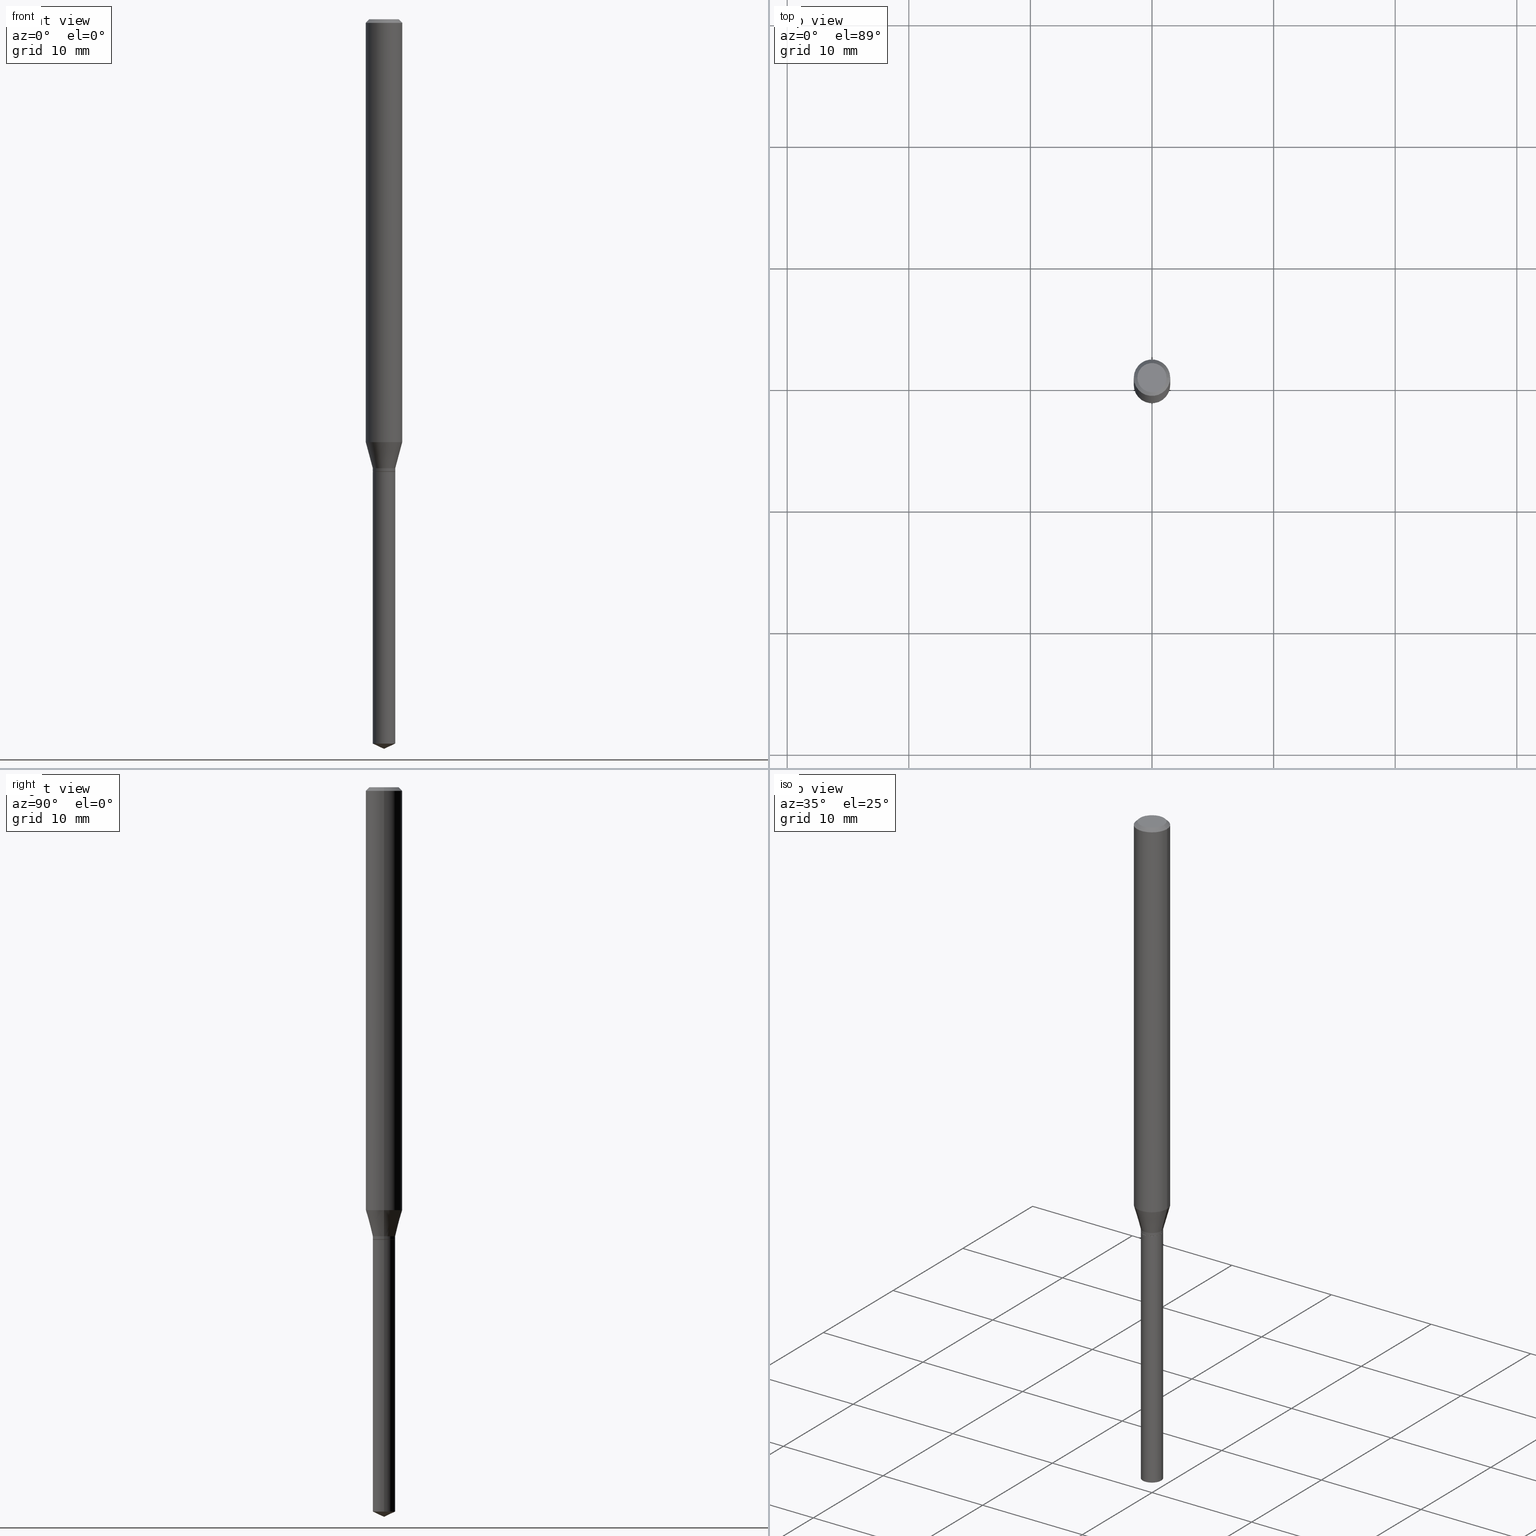
[diagram: canonical four-view strip — front | top / right | iso, engineering-drawing reading convention]
A machine part, canonical four-view strip (front | top / right | iso — engineering-drawing reading convention). The complete STEP part file that produces these views, byte-faithful:
ISO-10303-21;
HEADER;
FILE_DESCRIPTION (( 'STEP AP203' ),
    '1' );
FILE_NAME ('07583.STEP',
    '2024-04-23T23:18:37',
    ( '' ),
    ( '' ),
    'SwSTEP 2.0',
    'SolidWorks 2023',
    '' );
FILE_SCHEMA (( 'CONFIG_CONTROL_DESIGN' ));
ENDSEC;

DATA;
#1 = VECTOR ( 'NONE', #47, 39.37007874015747433 ) ;
#2 = DIRECTION ( 'NONE',  ( -2.445468806185136597E-29, 3.491481338843145583E-15, 1.000000000000000000 ) ) ;
#3 = AXIS2_PLACEMENT_3D ( 'NONE', #489, #115, #110 ) ;
#4 = DIRECTION ( 'NONE',  ( -2.445468806185136597E-29, 3.491481338843145583E-15, 1.000000000000000000 ) ) ;
#5 = LINE ( 'NONE', #377, #486 ) ;
#6 = EDGE_LOOP ( 'NONE', ( #98, #381, #43 ) ) ;
#7 = APPLICATION_PROTOCOL_DEFINITION ( 'international standard', 'config_control_design', 1994, #412 ) ;
#8 = DIRECTION ( 'NONE',  ( -1.000000000000000000, 6.982962677686265922E-15, -4.876176775795935793E-29 ) ) ;
#9 = ORIENTED_EDGE ( 'NONE', *, *, #373, .F. ) ;
#10 = APPROVAL ( #393, 'UNSPECIFIED' ) ;
#11 = PERSON_AND_ORGANIZATION ( #208, #271 ) ;
#12 = DIRECTION ( 'NONE',  ( 1.000000000000000000, -6.982962677686259611E-15, 0.000000000000000000 ) ) ;
#13 = CONICAL_SURFACE ( 'NONE', #238, 0.03640000000000004343, 0.2617993877991500740 ) ;
#14 = ORIENTED_EDGE ( 'NONE', *, *, #72, .T. ) ;
#15 = DIRECTION ( 'NONE',  ( -2.445468806185136597E-29, 3.491481338843145583E-15, 1.000000000000000000 ) ) ;
#16 = CALENDAR_DATE ( 2024, 23, 4 ) ;
#17 = PERSON_AND_ORGANIZATION_ROLE ( 'creator' ) ;
#18 = ORIENTED_EDGE ( 'NONE', *, *, #249, .T. ) ;
#19 = DIRECTION ( 'NONE',  ( 1.000000000000000000, -6.982962677686265922E-15, 0.000000000000000000 ) ) ;
#20 = VECTOR ( 'NONE', #137, 39.37007874015748143 ) ;
#21 = ADVANCED_FACE ( 'NONE', ( #465 ), #38, .F. ) ;
#22 = DIRECTION ( 'NONE',  ( -2.445468806185136597E-29, 3.491481338843145583E-15, 1.000000000000000000 ) ) ;
#23 = DIRECTION ( 'NONE',  ( 1.000000000000000000, -6.982962677686273810E-15, 0.000000000000000000 ) ) ;
#24 = EDGE_LOOP ( 'NONE', ( #460, #290, #407, #176 ) ) ;
#25 = LOCAL_TIME ( 19, 18, 37.00000000000000000, #468 ) ;
#26 = EDGE_CURVE ( 'NONE', #350, #282, #274, .T. ) ;
#27 = DIRECTION ( 'NONE',  ( 1.000000000000000000, -6.982962677686273810E-15, 0.000000000000000000 ) ) ;
#28 = LINE ( 'NONE', #482, #239 ) ;
#29 = DIRECTION ( 'NONE',  ( -2.445468806185136877E-29, 3.491481338843145188E-15, 1.000000000000000000 ) ) ;
#30 = ORIENTED_EDGE ( 'NONE', *, *, #240, .T. ) ;
#31 = VECTOR ( 'NONE', #29, 39.37007874015748143 ) ;
#32 = AXIS2_PLACEMENT_3D ( 'NONE', #266, #234, #342 ) ;
#33 = LINE ( 'NONE', #409, #392 ) ;
#34 = EDGE_LOOP ( 'NONE', ( #441, #30, #227, #46 ) ) ;
#35 = APPROVAL_STATUS ( 'not_yet_approved' ) ;
#36 = PLANE ( 'NONE',  #286 ) ;
#37 = DIRECTION ( 'NONE',  ( -2.445468806185136877E-29, 3.491481338843145188E-15, 1.000000000000000000 ) ) ;
#38 = PLANE ( 'NONE',  #189 ) ;
#39 = CALENDAR_DATE ( 2024, 23, 4 ) ;
#40 = CIRCLE ( 'NONE', #323, 0.03640000000000004343 ) ;
#41 = CARTESIAN_POINT ( 'NONE',  ( -0.03640000000000004343, -4.816928866459602676E-15, -1.453699999999999770 ) ) ;
#42 = AXIS2_PLACEMENT_3D ( 'NONE', #179, #198, #203 ) ;
#43 = ORIENTED_EDGE ( 'NONE', *, *, #249, .F. ) ;
#44 = CC_DESIGN_DATE_AND_TIME_ASSIGNMENT ( #94, #398, ( #277 ) ) ;
#45 = CARTESIAN_POINT ( 'NONE',  ( 0.03639999999999998792, -8.442494056770533327E-15, -2.345226401243158065 ) ) ;
#46 = ORIENTED_EDGE ( 'NONE', *, *, #387, .F. ) ;
#47 = DIRECTION ( 'NONE',  ( -0.2588190451025213501, 5.211531920934551042E-15, 0.9659258262890682012 ) ) ;
#48 = VERTEX_POINT ( 'NONE', #390 ) ;
#49 = FACE_OUTER_BOUND ( 'NONE', #162, .T. ) ;
#50 = CC_DESIGN_APPROVAL ( #10, ( #54 ) ) ;
#51 = CC_DESIGN_PERSON_AND_ORGANIZATION_ASSIGNMENT ( #11, #316, ( #92 ) ) ;
#52 = CARTESIAN_POINT ( 'NONE',  ( 2.888098660104665518E-31, -4.123439461173782112E-17, -0.01181000000000007738 ) ) ;
#53 = ORIENTED_EDGE ( 'NONE', *, *, #341, .F. ) ;
#54 = SECURITY_CLASSIFICATION ( '', '', #146 ) ;
#55 = CIRCLE ( 'NONE', #42, 0.03590000000000000135 ) ;
#56 = ADVANCED_FACE ( 'NONE', ( #49 ), #200, .T. ) ;
#57 = ORIENTED_EDGE ( 'NONE', *, *, #401, .T. ) ;
#58 = PERSON_AND_ORGANIZATION ( #208, #271 ) ;
#59 = DIRECTION ( 'NONE',  ( -2.445468806185136597E-29, 3.491481338843145583E-15, 1.000000000000000000 ) ) ;
#60 = VERTEX_POINT ( 'NONE', #114 ) ;
#61 = AXIS2_PLACEMENT_3D ( 'NONE', #195, #153, #416 ) ;
#62 = EDGE_CURVE ( 'NONE', #333, #353, #260, .T. ) ;
#63 = DIRECTION ( 'NONE',  ( -2.445468806185136597E-29, 3.491481338843145583E-15, 1.000000000000000000 ) ) ;
#64 = MANIFOLD_SOLID_BREP ( 'Body-Move/Copy2[1]', #95 ) ;
#65 = CARTESIAN_POINT ( 'NONE',  ( 0.000000000000000000, 0.000000000000000000, 0.000000000000000000 ) ) ;
#66 = APPLICATION_PROTOCOL_DEFINITION ( 'international standard', 'config_control_design', 1994, #228 ) ;
#67 = MANIFOLD_SOLID_BREP ( 'Body-Move/Copy2[2]', #215 ) ;
#68 = DIRECTION ( 'NONE',  ( 1.000000000000000000, 0.000000000000000000, 0.000000000000000000 ) ) ;
#69 = EDGE_LOOP ( 'NONE', ( #78, #204 ) ) ;
#70 = CONICAL_SURFACE ( 'NONE', #111, 0.05905000000000000526, 0.7853981633974452814 ) ;
#71 = CARTESIAN_POINT ( 'NONE',  ( 0.000000000000000000, 0.000000000000000000, 0.000000000000000000 ) ) ;
#72 = EDGE_CURVE ( 'NONE', #365, #132, #127, .T. ) ;
#73 = DIRECTION ( 'NONE',  ( -1.000000000000000000, 6.982962677686265922E-15, -4.876176775795935793E-29 ) ) ;
#74 = CARTESIAN_POINT ( 'NONE',  ( 3.554978003551332666E-29, -5.075566422276279847E-15, -1.453699999999999770 ) ) ;
#75 =( NAMED_UNIT ( * ) SI_UNIT ( $, .STERADIAN. ) SOLID_ANGLE_UNIT ( ) );
#76 = EDGE_CURVE ( 'NONE', #83, #282, #253, .T. ) ;
#77 = CARTESIAN_POINT ( 'NONE',  ( 4.132873053354867254E-48, -5.900647395337818946E-34, -1.690012582823346072E-19 ) ) ;
#78 = ORIENTED_EDGE ( 'NONE', *, *, #466, .F. ) ;
#79 =( CONVERSION_BASED_UNIT ( 'INCH', #258 ) LENGTH_UNIT ( ) NAMED_UNIT ( #87 ) );
#80 = ADVANCED_FACE ( 'NONE', ( #96 ), #13, .T. ) ;
#81 = VECTOR ( 'NONE', #406, 39.37007874015748143 ) ;
#82 = VECTOR ( 'NONE', #376, 39.37007874015748854 ) ;
#83 = VERTEX_POINT ( 'NONE', #130 ) ;
#84 = APPROVAL_DATE_TIME ( #236, #312 ) ;
#85 = CARTESIAN_POINT ( 'NONE',  ( 0.03590000000000000135, -5.364311928998607581E-15, -1.464599999999999902 ) ) ;
#86 = EDGE_LOOP ( 'NONE', ( #212, #375, #148, #117 ) ) ;
#87 = DIMENSIONAL_EXPONENTS ( 1.000000000000000000, 0.000000000000000000, 0.000000000000000000, 0.000000000000000000, 0.000000000000000000, 0.000000000000000000, 0.000000000000000000 ) ;
#88 = ADVANCED_FACE ( 'NONE', ( #169 ), #459, .T. ) ;
#89 = CARTESIAN_POINT ( 'NONE',  ( 3.581633613538751591E-29, -5.113623568869670202E-15, -1.464599999999999902 ) ) ;
#90 = CONICAL_SURFACE ( 'NONE', #297, 0.05905000000000000526, 0.7853981633974452814 ) ;
#91 = DIRECTION ( 'NONE',  ( 1.000000000000000000, -6.982962677686267499E-15, 4.876176775795936914E-29 ) ) ;
#92 = PRODUCT_DEFINITION_FORMATION_WITH_SPECIFIED_SOURCE ( 'ANY', '', #343, .NOT_KNOWN. ) ;
#93 = ORIENTED_EDGE ( 'NONE', *, *, #411, .F. ) ;
#94 = DATE_AND_TIME ( #39, #25 ) ;
#95 = CLOSED_SHELL ( 'NONE', ( #325, #88, #108, #463, #428 ) ) ;
#96 = FACE_OUTER_BOUND ( 'NONE', #273, .T. ) ;
#97 = CIRCLE ( 'NONE', #154, 0.04724000000000000421 ) ;
#98 = ORIENTED_EDGE ( 'NONE', *, *, #395, .F. ) ;
#99 = APPROVAL_DATE_TIME ( #223, #168 ) ;
#100 = DIRECTION ( 'NONE',  ( -2.445468806185136597E-29, 3.491481338843145583E-15, 1.000000000000000000 ) ) ;
#101 = CC_DESIGN_PERSON_AND_ORGANIZATION_ASSIGNMENT ( #447, #462, ( #54 ) ) ;
#102 = VERTEX_POINT ( 'NONE', #175 ) ;
#103 = CARTESIAN_POINT ( 'NONE',  ( 2.888098660104665518E-31, -4.123439461173782112E-17, -0.01181000000000007738 ) ) ;
#104 = DIRECTION ( 'NONE',  ( 1.000000000000000000, -6.982962677686273810E-15, 0.000000000000000000 ) ) ;
#105 = AXIS2_PLACEMENT_3D ( 'NONE', #247, #476, #281 ) ;
#106 = MECHANICAL_CONTEXT ( 'NONE', #412, 'mechanical' ) ;
#107 = DIRECTION ( 'NONE',  ( 1.000000000000000000, -6.982962677686266711E-15, 4.876185090822587894E-29 ) ) ;
#108 = ADVANCED_FACE ( 'NONE', ( #133 ), #478, .T. ) ;
#109 = FACE_OUTER_BOUND ( 'NONE', #283, .T. ) ;
#110 = DIRECTION ( 'NONE',  ( 1.000000000000000000, -6.982962677686267499E-15, 4.876176775795936353E-29 ) ) ;
#111 = AXIS2_PLACEMENT_3D ( 'NONE', #337, #296, #488 ) ;
#112 = AXIS2_PLACEMENT_3D ( 'NONE', #71, #288, #68 ) ;
#113 = DIRECTION ( 'NONE',  ( 1.000000000000000000, -6.982962677686265922E-15, 0.000000000000000000 ) ) ;
#114 = CARTESIAN_POINT ( 'NONE',  ( 5.776686413970529753E-29, -8.247577218615279626E-15, -2.362200000000000077 ) ) ;
#115 = DIRECTION ( 'NONE',  ( -2.445468806185136597E-29, 3.491481338843145583E-15, 1.000000000000000000 ) ) ;
#116 = CARTESIAN_POINT ( 'NONE',  ( 5.776686413970529753E-29, -8.247577218615279626E-15, -2.362200000000000077 ) ) ;
#117 = ORIENTED_EDGE ( 'NONE', *, *, #424, .F. ) ;
#118 = ADVANCED_FACE ( 'NONE', ( #172 ), #90, .T. ) ;
#119 = CARTESIAN_POINT ( 'NONE',  ( 3.581633613538751591E-29, -5.113623568869670202E-15, -1.464599999999999902 ) ) ;
#120 = ORIENTED_EDGE ( 'NONE', *, *, #457, .T. ) ;
#121 = AXIS2_PLACEMENT_3D ( 'NONE', #359, #432, #19 ) ;
#122 = DIRECTION ( 'NONE',  ( -2.445468806185136597E-29, 3.491481338843145583E-15, 1.000000000000000000 ) ) ;
#123 = COORDINATED_UNIVERSAL_TIME_OFFSET ( 5, 0, .BEHIND. ) ;
#124 = ORIENTED_EDGE ( 'NONE', *, *, #395, .T. ) ;
#125 = PERSON_AND_ORGANIZATION ( #208, #271 ) ;
#126 = DIRECTION ( 'NONE',  ( -2.445468806185136597E-29, 3.491481338843145583E-15, 1.000000000000000000 ) ) ;
#127 = CIRCLE ( 'NONE', #470, 0.03640000000000004343 ) ;
#128 = AXIS2_PLACEMENT_3D ( 'NONE', #356, #394, #23 ) ;
#129 = ORIENTED_EDGE ( 'NONE', *, *, #131, .T. ) ;
#130 = CARTESIAN_POINT ( 'NONE',  ( 0.03640000000000005037, -5.366057669668031451E-15, -1.464100000000000401 ) ) ;
#131 = EDGE_CURVE ( 'NONE', #132, #438, #431, .T. ) ;
#132 = VERTEX_POINT ( 'NONE', #202 ) ;
#133 = FACE_OUTER_BOUND ( 'NONE', #6, .T. ) ;
#134 = AXIS2_PLACEMENT_3D ( 'NONE', #453, #380, #347 ) ;
#135 = VERTEX_POINT ( 'NONE', #211 ) ;
#136 = CC_DESIGN_PERSON_AND_ORGANIZATION_ASSIGNMENT ( #58, #17, ( #277 ) ) ;
#137 = DIRECTION ( 'NONE',  ( 0.7071067811865453523, -7.319954787623248157E-15, -0.7071067811865496822 ) ) ;
#138 = ORIENTED_EDGE ( 'NONE', *, *, #194, .T. ) ;
#139 = DIRECTION ( 'NONE',  ( -0.7071067811865453523, 2.468850131082234184E-15, -0.7071067811865496822 ) ) ;
#140 = CALENDAR_DATE ( 2024, 23, 4 ) ;
#141 = CARTESIAN_POINT ( 'NONE',  ( 5.735178007681969204E-29, -8.188314215302752941E-15, -2.345226401243158065 ) ) ;
#142 = ADVANCED_BREP_SHAPE_REPRESENTATION ( '07583', ( #64, #67, #112 ), #246 ) ;
#143 = ADVANCED_FACE ( 'NONE', ( #364 ), #427, .T. ) ;
#144 = CONICAL_SURFACE ( 'NONE', #171, 0.03640000000000004343, 0.2617993877991500740 ) ;
#145 = AXIS2_PLACEMENT_3D ( 'NONE', #103, #63, #180 ) ;
#146 = SECURITY_CLASSIFICATION_LEVEL ( 'unclassified' ) ;
#147 = CARTESIAN_POINT ( 'NONE',  ( -0.03640000000000000180, -6.392331336269535190E-15, -1.464599999999999902 ) ) ;
#148 = ORIENTED_EDGE ( 'NONE', *, *, #76, .F. ) ;
#149 = EDGE_CURVE ( 'NONE', #357, #158, #397, .T. ) ;
#150 = PERSON_AND_ORGANIZATION_ROLE ( 'design_owner' ) ;
#151 = CARTESIAN_POINT ( 'NONE',  ( -0.03640000000000000180, -4.854986013052993820E-15, -1.464599999999999902 ) ) ;
#152 = DIRECTION ( 'NONE',  ( 0.9063077870366481603, -4.853149677051353546E-15, 0.4226182617407032716 ) ) ;
#153 = DIRECTION ( 'NONE',  ( -2.445468806185136597E-29, 3.491481338843145583E-15, 1.000000000000000000 ) ) ;
#154 = AXIS2_PLACEMENT_3D ( 'NONE', #448, #331, #107 ) ;
#155 = APPROVAL_PERSON_ORGANIZATION ( #125, #10, #275 ) ;
#156 = ADVANCED_FACE ( 'NONE', ( #445 ), #70, .T. ) ;
#157 = CARTESIAN_POINT ( 'NONE',  ( 0.03640000000000000180, -5.367803410337450588E-15, -1.464599999999999902 ) ) ;
#158 = VERTEX_POINT ( 'NONE', #147 ) ;
#159 = FACE_OUTER_BOUND ( 'NONE', #214, .T. ) ;
#160 = ORIENTED_EDGE ( 'NONE', *, *, #411, .T. ) ;
#161 = FACE_OUTER_BOUND ( 'NONE', #86, .T. ) ;
#162 = EDGE_LOOP ( 'NONE', ( #263, #434, #57, #93 ) ) ;
#163 = CYLINDRICAL_SURFACE ( 'NONE', #298, 0.03640000000000000180 ) ;
#164 = CIRCLE ( 'NONE', #346, 0.03590000000000000135 ) ;
#165 = CARTESIAN_POINT ( 'NONE',  ( 3.581633613538751591E-29, -5.113623568869670202E-15, -1.464599999999999902 ) ) ;
#166 = ORIENTED_EDGE ( 'NONE', *, *, #149, .T. ) ;
#167 = PERSON_AND_ORGANIZATION ( #208, #271 ) ;
#168 = APPROVAL ( #35, 'UNSPECIFIED' ) ;
#169 = FACE_OUTER_BOUND ( 'NONE', #321, .T. ) ;
#170 = EDGE_CURVE ( 'NONE', #282, #365, #222, .T. ) ;
#171 = AXIS2_PLACEMENT_3D ( 'NONE', #413, #313, #113 ) ;
#172 = FACE_OUTER_BOUND ( 'NONE', #24, .T. ) ;
#173 = CC_DESIGN_APPROVAL ( #312, ( #92 ) ) ;
#174 = FACE_OUTER_BOUND ( 'NONE', #34, .T. ) ;
#175 = CARTESIAN_POINT ( 'NONE',  ( 0.04724000000000000421, -3.852183633974369838E-16, -3.380025165621689721E-19 ) ) ;
#176 = ORIENTED_EDGE ( 'NONE', *, *, #479, .F. ) ;
#177 = EDGE_LOOP ( 'NONE', ( #250, #18, #138, #327 ) ) ;
#178 = DIRECTION ( 'NONE',  ( -2.445468806185136597E-29, 3.491481338843145583E-15, 1.000000000000000000 ) ) ;
#179 = CARTESIAN_POINT ( 'NONE',  ( 3.581633613538751591E-29, -5.113623568869670202E-15, -1.464599999999999902 ) ) ;
#180 = DIRECTION ( 'NONE',  ( 1.000000000000000000, -6.982962677686267499E-15, 0.000000000000000000 ) ) ;
#181 = FACE_OUTER_BOUND ( 'NONE', #481, .T. ) ;
#182 = DIRECTION ( 'NONE',  ( 1.000000000000000000, -6.982962677686259611E-15, 0.000000000000000000 ) ) ;
#183 = DIRECTION ( 'NONE',  ( 1.000000000000000000, -6.982962677686266711E-15, 4.876185090822587894E-29 ) ) ;
#184 = ORIENTED_EDGE ( 'NONE', *, *, #264, .T. ) ;
#185 = DIRECTION ( 'NONE',  ( 1.000000000000000000, -6.982962677686268288E-15, 0.000000000000000000 ) ) ;
#186 = EDGE_CURVE ( 'NONE', #475, #102, #97, .T. ) ;
#187 = CARTESIAN_POINT ( 'NONE',  ( -0.05905000000000017180, -4.360852699566974684E-15, -1.369169049208564415 ) ) ;
#188 = ORIENTED_EDGE ( 'NONE', *, *, #76, .T. ) ;
#189 = AXIS2_PLACEMENT_3D ( 'NONE', #89, #418, #385 ) ;
#190 = AXIS2_PLACEMENT_3D ( 'NONE', #77, #352, #73 ) ;
#191 = LINE ( 'NONE', #116, #209 ) ;
#192 = ORIENTED_EDGE ( 'NONE', *, *, #284, .T. ) ;
#193 = CARTESIAN_POINT ( 'NONE',  ( 3.348260200233706475E-29, -4.780428185033314966E-15, -1.369169049208564415 ) ) ;
#194 = EDGE_CURVE ( 'NONE', #345, #357, #33, .T. ) ;
#195 = CARTESIAN_POINT ( 'NONE',  ( 0.000000000000000000, 0.000000000000000000, 0.000000000000000000 ) ) ;
#196 = CARTESIAN_POINT ( 'NONE',  ( -0.03640000000000004343, -4.835084569421588680E-15, -1.453699999999999770 ) ) ;
#197 = ORIENTED_EDGE ( 'NONE', *, *, #62, .T. ) ;
#198 = DIRECTION ( 'NONE',  ( -2.445468806185136597E-29, 3.491481338843145583E-15, 1.000000000000000000 ) ) ;
#199 = AXIS2_PLACEMENT_3D ( 'NONE', #193, #317, #185 ) ;
#200 = CYLINDRICAL_SURFACE ( 'NONE', #61, 0.05905000000000008159 ) ;
#201 = ADVANCED_FACE ( 'NONE', ( #109 ), #480, .T. ) ;
#202 = CARTESIAN_POINT ( 'NONE',  ( 0.03640000000000004343, -5.329746263744060232E-15, -1.453699999999999770 ) ) ;
#203 = DIRECTION ( 'NONE',  ( 1.000000000000000000, -6.982962677686259611E-15, 0.000000000000000000 ) ) ;
#204 = ORIENTED_EDGE ( 'NONE', *, *, #240, .F. ) ;
#205 = COORDINATED_UNIVERSAL_TIME_OFFSET ( 5, 0, .BEHIND. ) ;
#206 = EDGE_CURVE ( 'NONE', #102, #135, #216, .T. ) ;
#207 = CARTESIAN_POINT ( 'NONE',  ( 3.554978003551332666E-29, -5.075566422276279847E-15, -1.453699999999999770 ) ) ;
#208 = PERSON ( 'UNSPECIFIED', 'UNSPECIFIED', 'UNSPECIFIED', ('UNSPECIFIED'), ('UNSPECIFIED'), ('UNSPECIFIED') ) ;
#209 = VECTOR ( 'NONE', #384, 39.37007874015748143 ) ;
#210 = AXIS2_PLACEMENT_3D ( 'NONE', #455, #422, #464 ) ;
#211 = CARTESIAN_POINT ( 'NONE',  ( 0.05905000000000000526, -4.535783407291119586E-16, -0.01181000000000007738 ) ) ;
#212 = ORIENTED_EDGE ( 'NONE', *, *, #466, .T. ) ;
#213 = DIRECTION ( 'NONE',  ( 0.2588190451025213501, 1.565188264969621968E-15, 0.9659258262890682012 ) ) ;
#214 = EDGE_LOOP ( 'NONE', ( #53, #14, #129, #293 ) ) ;
#215 = CLOSED_SHELL ( 'NONE', ( #363, #118, #490, #80, #201, #143, #328, #56, #156, #319, #21, #469 ) ) ;
#216 = LINE ( 'NONE', #374, #20 ) ;
#217 = AXIS2_PLACEMENT_3D ( 'NONE', #165, #122, #12 ) ;
#218 = AXIS2_PLACEMENT_3D ( 'NONE', #300, #22, #182 ) ;
#219 = CARTESIAN_POINT ( 'NONE',  ( 8.265746106709734507E-48, -1.180129479067563789E-33, -3.380025165646692144E-19 ) ) ;
#220 = CYLINDRICAL_SURFACE ( 'NONE', #3, 0.05905000000000008159 ) ;
#221 = CALENDAR_DATE ( 2024, 23, 4 ) ;
#222 = LINE ( 'NONE', #299, #443 ) ;
#223 = DATE_AND_TIME ( #140, #270 ) ;
#224 = LINE ( 'NONE', #41, #1 ) ;
#225 = EDGE_CURVE ( 'NONE', #102, #475, #279, .T. ) ;
#226 = LINE ( 'NONE', #425, #382 ) ;
#227 = ORIENTED_EDGE ( 'NONE', *, *, #424, .T. ) ;
#228 = APPLICATION_CONTEXT ( 'configuration controlled 3d designs of mechanical parts and assemblies' ) ;
#229 = ORIENTED_EDGE ( 'NONE', *, *, #170, .F. ) ;
#230 = LOCAL_TIME ( 19, 18, 37.00000000000000000, #205 ) ;
#231 = DIRECTION ( 'NONE',  ( 1.000000000000000000, -6.982962677686265922E-15, 0.000000000000000000 ) ) ;
#232 = CARTESIAN_POINT ( 'NONE',  ( -0.03590000000000000135, -4.858538726731794719E-15, -1.464599999999999902 ) ) ;
#233 = EDGE_CURVE ( 'NONE', #48, #158, #339, .T. ) ;
#234 = DIRECTION ( 'NONE',  ( -2.445468806185136597E-29, 3.491481338843145583E-15, 1.000000000000000000 ) ) ;
#235 = EDGE_LOOP ( 'NONE', ( #120, #197, #248, #429 ) ) ;
#236 = DATE_AND_TIME ( #421, #280 ) ;
#237 = EDGE_LOOP ( 'NONE', ( #166, #184 ) ) ;
#238 = AXIS2_PLACEMENT_3D ( 'NONE', #207, #15, #437 ) ;
#239 = VECTOR ( 'NONE', #139, 39.37007874015748143 ) ;
#240 = EDGE_CURVE ( 'NONE', #350, #355, #164, .T. ) ;
#241 = ORIENTED_EDGE ( 'NONE', *, *, #131, .F. ) ;
#242 = CARTESIAN_POINT ( 'NONE',  ( 3.581633613538751591E-29, -5.113623568869670202E-15, -1.464599999999999902 ) ) ;
#243 = DIRECTION ( 'NONE',  ( 2.445468806185136597E-29, -3.491481338843145583E-15, -1.000000000000000000 ) ) ;
#244 = ORIENTED_EDGE ( 'NONE', *, *, #206, .F. ) ;
#245 = AXIS2_PLACEMENT_3D ( 'NONE', #467, #126, #91 ) ;
#246 =( GEOMETRIC_REPRESENTATION_CONTEXT ( 3 ) GLOBAL_UNCERTAINTY_ASSIGNED_CONTEXT ( ( #396 ) ) GLOBAL_UNIT_ASSIGNED_CONTEXT ( ( #79, #410, #75 ) ) REPRESENTATION_CONTEXT ( 'NONE', 'WORKASPACE' ) );
#247 = CARTESIAN_POINT ( 'NONE',  ( -9.050161304213721862E-28, 1.292123180114298356E-13, 37.00787874015748002 ) ) ;
#248 = ORIENTED_EDGE ( 'NONE', *, *, #485, .F. ) ;
#249 = EDGE_CURVE ( 'NONE', #48, #345, #435, .T. ) ;
#250 = ORIENTED_EDGE ( 'NONE', *, *, #233, .F. ) ;
#251 = DIRECTION ( 'NONE',  ( 1.000000000000000000, -6.982962677686259611E-15, 0.000000000000000000 ) ) ;
#252 = ORIENTED_EDGE ( 'NONE', *, *, #72, .F. ) ;
#253 = CIRCLE ( 'NONE', #295, 0.03640000000000005037 ) ;
#254 = LINE ( 'NONE', #370, #31 ) ;
#255 = CIRCLE ( 'NONE', #199, 0.05905000000000017180 ) ;
#256 = DATE_AND_TIME ( #221, #444 ) ;
#257 = DIRECTION ( 'NONE',  ( 1.000000000000000000, -6.982962677686267499E-15, 4.876176775795936914E-29 ) ) ;
#258 = LENGTH_MEASURE_WITH_UNIT ( LENGTH_MEASURE( 0.02539999999999999897 ), #261 );
#259 = CARTESIAN_POINT ( 'NONE',  ( -0.03590000000000000135, -4.855889499557684307E-15, -1.464599999999999902 ) ) ;
#260 = LINE ( 'NONE', #311, #354 ) ;
#261 =( LENGTH_UNIT ( ) NAMED_UNIT ( * ) SI_UNIT ( $, .METRE. ) );
#262 = DIRECTION ( 'NONE',  ( 1.000000000000000000, -6.982962677686267499E-15, 0.000000000000000000 ) ) ;
#263 = ORIENTED_EDGE ( 'NONE', *, *, #62, .F. ) ;
#264 = EDGE_CURVE ( 'NONE', #158, #357, #450, .T. ) ;
#265 = PRODUCT_DEFINITION_SHAPE ( 'NONE', 'NONE',  #277 ) ;
#266 = CARTESIAN_POINT ( 'NONE',  ( 3.348260200233706475E-29, -4.780428185033314966E-15, -1.369169049208564415 ) ) ;
#267 = ORIENTED_EDGE ( 'NONE', *, *, #387, .T. ) ;
#268 = CIRCLE ( 'NONE', #383, 0.05905000000000000526 ) ;
#269 = APPROVAL_STATUS ( 'not_yet_approved' ) ;
#270 = LOCAL_TIME ( 19, 18, 37.00000000000000000, #371 ) ;
#271 = ORGANIZATION ( 'UNSPECIFIED', 'UNSPECIFIED', '' ) ;
#272 = CARTESIAN_POINT ( 'NONE',  ( 0.03590000000000000135, -5.364311928998607581E-15, -1.464599999999999902 ) ) ;
#273 = EDGE_LOOP ( 'NONE', ( #340, #360, #378, #241 ) ) ;
#274 = LINE ( 'NONE', #232, #278 ) ;
#275 = APPROVAL_ROLE ( '' ) ;
#276 = DESIGN_CONTEXT ( 'detailed design', #228, 'design' ) ;
#277 = PRODUCT_DEFINITION ( 'UNKNOWN', '', #92, #276 ) ;
#278 = VECTOR ( 'NONE', #426, 39.37007874015748854 ) ;
#279 = CIRCLE ( 'NONE', #306, 0.04724000000000000421 ) ;
#280 = LOCAL_TIME ( 19, 18, 37.00000000000000000, #389 ) ;
#281 = DIRECTION ( 'NONE',  ( 1.000000000000000000, -6.982962677686265922E-15, 0.000000000000000000 ) ) ;
#282 = VERTEX_POINT ( 'NONE', #483 ) ;
#283 = EDGE_LOOP ( 'NONE', ( #188, #348, #9, #477 ) ) ;
#284 = EDGE_CURVE ( 'NONE', #345, #48, #315, .T. ) ;
#285 = EDGE_LOOP ( 'NONE', ( #192, #399, #305, #402 ) ) ;
#286 = AXIS2_PLACEMENT_3D ( 'NONE', #119, #386, #8 ) ;
#287 = EDGE_LOOP ( 'NONE', ( #244, #335, #423, #160 ) ) ;
#288 = DIRECTION ( 'NONE',  ( 0.000000000000000000, 0.000000000000000000, 1.000000000000000000 ) ) ;
#289 = DIRECTION ( 'NONE',  ( -2.445468806185136597E-29, 3.491481338843145583E-15, 1.000000000000000000 ) ) ;
#290 = ORIENTED_EDGE ( 'NONE', *, *, #206, .T. ) ;
#291 = DIRECTION ( 'NONE',  ( 1.000000000000000000, -6.982962677686273810E-15, 0.000000000000000000 ) ) ;
#292 = EDGE_CURVE ( 'NONE', #83, #132, #254, .T. ) ;
#293 = ORIENTED_EDGE ( 'NONE', *, *, #366, .F. ) ;
#294 = FACE_OUTER_BOUND ( 'NONE', #235, .T. ) ;
#295 = AXIS2_PLACEMENT_3D ( 'NONE', #456, #454, #474 ) ;
#296 = DIRECTION ( 'NONE',  ( 2.445468806185136597E-29, -3.491481338843145583E-15, -1.000000000000000000 ) ) ;
#297 = AXIS2_PLACEMENT_3D ( 'NONE', #52, #243, #473 ) ;
#298 = AXIS2_PLACEMENT_3D ( 'NONE', #242, #449, #326 ) ;
#299 = CARTESIAN_POINT ( 'NONE',  ( -0.03640000000000004343, 2.586375558166767763E-16, -1.790492372852788062E-30 ) ) ;
#300 = CARTESIAN_POINT ( 'NONE',  ( 3.581633613538751591E-29, -5.113623568869670202E-15, -1.464599999999999902 ) ) ;
#301 = PERSON_AND_ORGANIZATION ( #208, #271 ) ;
#302 = CARTESIAN_POINT ( 'NONE',  ( 3.581633613538751591E-29, -5.113623568869670202E-15, -1.464599999999999902 ) ) ;
#303 = PRODUCT_RELATED_PRODUCT_CATEGORY ( 'detail', '', ( #343 ) ) ;
#304 = CARTESIAN_POINT ( 'NONE',  ( 0.05905000000000017180, -5.192772131150690675E-15, -1.369169049208564415 ) ) ;
#305 = ORIENTED_EDGE ( 'NONE', *, *, #149, .F. ) ;
#306 = AXIS2_PLACEMENT_3D ( 'NONE', #219, #332, #183 ) ;
#307 = CC_DESIGN_APPROVAL ( #168, ( #277 ) ) ;
#308 = CARTESIAN_POINT ( 'NONE',  ( 2.888098660104665518E-31, -4.123439461173782112E-17, -0.01181000000000007738 ) ) ;
#309 = DIRECTION ( 'NONE',  ( 1.000000000000000000, -6.982962677686265922E-15, 0.000000000000000000 ) ) ;
#310 = LINE ( 'NONE', #85, #82 ) ;
#311 = CARTESIAN_POINT ( 'NONE',  ( -0.05905000000000008159, 4.195754854663397395E-16, -2.904631170795525745E-30 ) ) ;
#312 = APPROVAL ( #269, 'UNSPECIFIED' ) ;
#313 = DIRECTION ( 'NONE',  ( -2.445468806185136597E-29, 3.491481338843145583E-15, 1.000000000000000000 ) ) ;
#314 = ORIENTED_EDGE ( 'NONE', *, *, #292, .T. ) ;
#315 = CIRCLE ( 'NONE', #430, 0.03640000000000000180 ) ;
#316 = PERSON_AND_ORGANIZATION_ROLE ( 'design_supplier' ) ;
#317 = DIRECTION ( 'NONE',  ( -2.445468806185136597E-29, 3.491481338843145583E-15, 1.000000000000000000 ) ) ;
#318 = ORIENTED_EDGE ( 'NONE', *, *, #186, .T. ) ;
#319 = ADVANCED_FACE ( 'NONE', ( #181 ), #334, .F. ) ;
#320 = FACE_OUTER_BOUND ( 'NONE', #177, .T. ) ;
#321 = EDGE_LOOP ( 'NONE', ( #388, #124, #405 ) ) ;
#322 = APPROVAL_DATE_TIME ( #358, #10 ) ;
#323 = AXIS2_PLACEMENT_3D ( 'NONE', #415, #2, #231 ) ;
#324 = APPROVAL_PERSON_ORGANIZATION ( #372, #312, #487 ) ;
#325 = ADVANCED_FACE ( 'NONE', ( #458 ), #451, .T. ) ;
#326 = DIRECTION ( 'NONE',  ( 1.000000000000000000, -6.982962677686273810E-15, 0.000000000000000000 ) ) ;
#327 = ORIENTED_EDGE ( 'NONE', *, *, #264, .F. ) ;
#328 = ADVANCED_FACE ( 'NONE', ( #159 ), #144, .T. ) ;
#329 = CARTESIAN_POINT ( 'NONE',  ( -0.04724000000000000421, 3.504923541997677355E-16, -3.380025165670481712E-19 ) ) ;
#330 = AXIS2_PLACEMENT_3D ( 'NONE', #65, #289, #257 ) ;
#331 = DIRECTION ( 'NONE',  ( -2.445468806185136597E-29, 3.491481338843145583E-15, 1.000000000000000000 ) ) ;
#332 = DIRECTION ( 'NONE',  ( -2.445468806185136597E-29, 3.491481338843145583E-15, 1.000000000000000000 ) ) ;
#333 = VERTEX_POINT ( 'NONE', #187 ) ;
#334 = PLANE ( 'NONE',  #190 ) ;
#335 = ORIENTED_EDGE ( 'NONE', *, *, #186, .F. ) ;
#336 = VECTOR ( 'NONE', #213, 39.37007874015747433 ) ;
#337 = CARTESIAN_POINT ( 'NONE',  ( 2.888098660104665518E-31, -4.123439461173782112E-17, -0.01181000000000007738 ) ) ;
#338 = CC_DESIGN_SECURITY_CLASSIFICATION ( #54, ( #92 ) ) ;
#339 = LINE ( 'NONE', #151, #81 ) ;
#340 = ORIENTED_EDGE ( 'NONE', *, *, #373, .T. ) ;
#341 = EDGE_CURVE ( 'NONE', #365, #333, #224, .T. ) ;
#342 = DIRECTION ( 'NONE',  ( 1.000000000000000000, -6.982962677686268288E-15, 0.000000000000000000 ) ) ;
#343 = PRODUCT ( '07583', '07583', '', ( #106 ) ) ;
#344 = CARTESIAN_POINT ( 'NONE',  ( -0.05905000000000000526, -1.991255804356185277E-15, -0.01181000000000007738 ) ) ;
#345 = VERTEX_POINT ( 'NONE', #45 ) ;
#346 = AXIS2_PLACEMENT_3D ( 'NONE', #302, #100, #251 ) ;
#347 = DIRECTION ( 'NONE',  ( 1.000000000000000000, -6.982962677686273810E-15, 0.000000000000000000 ) ) ;
#348 = ORIENTED_EDGE ( 'NONE', *, *, #170, .T. ) ;
#349 = FACE_OUTER_BOUND ( 'NONE', #237, .T. ) ;
#350 = VERTEX_POINT ( 'NONE', #259 ) ;
#351 = PERSON_AND_ORGANIZATION_ROLE ( 'creator' ) ;
#352 = DIRECTION ( 'NONE',  ( 2.438088387897960049E-29, -3.491481338843145188E-15, -1.000000000000000000 ) ) ;
#353 = VERTEX_POINT ( 'NONE', #344 ) ;
#354 = VECTOR ( 'NONE', #414, 39.37007874015748143 ) ;
#355 = VERTEX_POINT ( 'NONE', #272 ) ;
#356 = CARTESIAN_POINT ( 'NONE',  ( 3.581633613538751591E-29, -5.113623568869670202E-15, -1.464599999999999902 ) ) ;
#357 = VERTEX_POINT ( 'NONE', #157 ) ;
#358 = DATE_AND_TIME ( #16, #230 ) ;
#359 = CARTESIAN_POINT ( 'NONE',  ( -9.050161304213721862E-28, 1.292123180114298356E-13, 37.00787874015748002 ) ) ;
#360 = ORIENTED_EDGE ( 'NONE', *, *, #341, .T. ) ;
#361 = AXIS2_PLACEMENT_3D ( 'NONE', #404, #59, #27 ) ;
#362 = CONICAL_SURFACE ( 'NONE', #218, 0.03590000000000000135, 0.7853981633978709409 ) ;
#363 = ADVANCED_FACE ( 'NONE', ( #161 ), #471, .T. ) ;
#364 = FACE_OUTER_BOUND ( 'NONE', #433, .T. ) ;
#365 = VERTEX_POINT ( 'NONE', #196 ) ;
#366 = EDGE_CURVE ( 'NONE', #333, #438, #255, .T. ) ;
#367 = AXIS2_PLACEMENT_3D ( 'NONE', #484, #178, #291 ) ;
#368 = APPROVAL_PERSON_ORGANIZATION ( #301, #168, #439 ) ;
#369 = DIRECTION ( 'NONE',  ( -2.445468806185136877E-29, 3.491481338843145188E-15, 1.000000000000000000 ) ) ;
#370 = CARTESIAN_POINT ( 'NONE',  ( 0.03640000000000004343, -2.541798414677804352E-16, 1.774928346389723078E-30 ) ) ;
#371 = COORDINATED_UNIVERSAL_TIME_OFFSET ( 5, 0, .BEHIND. ) ;
#372 = PERSON_AND_ORGANIZATION ( #208, #271 ) ;
#373 = EDGE_CURVE ( 'NONE', #132, #365, #40, .T. ) ;
#374 = CARTESIAN_POINT ( 'NONE',  ( 0.05905000000000000526, -4.463468013801467941E-16, -0.01181000000000007738 ) ) ;
#375 = ORIENTED_EDGE ( 'NONE', *, *, #26, .T. ) ;
#376 = DIRECTION ( 'NONE',  ( 0.7071067811868463338, -2.468850131085386866E-15, 0.7071067811862485897 ) ) ;
#377 = CARTESIAN_POINT ( 'NONE',  ( 0.05905000000000008159, -4.123439461173746736E-16, 2.879382386107504424E-30 ) ) ;
#378 = ORIENTED_EDGE ( 'NONE', *, *, #457, .F. ) ;
#379 = EDGE_CURVE ( 'NONE', #60, #345, #226, .T. ) ;
#380 = DIRECTION ( 'NONE',  ( -2.445468806185136597E-29, 3.491481338843145583E-15, 1.000000000000000000 ) ) ;
#381 = ORIENTED_EDGE ( 'NONE', *, *, #379, .T. ) ;
#382 = VECTOR ( 'NONE', #152, 39.37007874015748143 ) ;
#383 = AXIS2_PLACEMENT_3D ( 'NONE', #308, #417, #262 ) ;
#384 = DIRECTION ( 'NONE',  ( -0.9063077870366481603, 7.915267918739016209E-15, 0.4226182617407032716 ) ) ;
#385 = DIRECTION ( 'NONE',  ( 1.000000000000000000, -6.982962677686265922E-15, 4.876176775795935793E-29 ) ) ;
#386 = DIRECTION ( 'NONE',  ( 2.438088387897960049E-29, -3.491481338843145188E-15, -1.000000000000000000 ) ) ;
#387 = EDGE_CURVE ( 'NONE', #282, #83, #419, .T. ) ;
#388 = ORIENTED_EDGE ( 'NONE', *, *, #379, .F. ) ;
#389 = COORDINATED_UNIVERSAL_TIME_OFFSET ( 5, 0, .BEHIND. ) ;
#390 = CARTESIAN_POINT ( 'NONE',  ( -0.03639999999999998792, -7.929676659486076559E-15, -2.345226401243158065 ) ) ;
#391 = CC_DESIGN_PERSON_AND_ORGANIZATION_ASSIGNMENT ( #167, #351, ( #92 ) ) ;
#392 = VECTOR ( 'NONE', #369, 39.37007874015748143 ) ;
#393 = APPROVAL_STATUS ( 'not_yet_approved' ) ;
#394 = DIRECTION ( 'NONE',  ( -2.445468806185136597E-29, 3.491481338843145583E-15, 1.000000000000000000 ) ) ;
#395 = EDGE_CURVE ( 'NONE', #60, #48, #191, .T. ) ;
#396 = UNCERTAINTY_MEASURE_WITH_UNIT (LENGTH_MEASURE( 1.000000000000000082E-05 ), #79, 'distance_accuracy_value', 'NONE');
#397 = CIRCLE ( 'NONE', #128, 0.03640000000000000180 ) ;
#398 = DATE_TIME_ROLE ( 'creation_date' ) ;
#399 = ORIENTED_EDGE ( 'NONE', *, *, #233, .T. ) ;
#400 = CARTESIAN_POINT ( 'NONE',  ( 0.03640000000000004343, -5.329746263744060232E-15, -1.453699999999999770 ) ) ;
#401 = EDGE_CURVE ( 'NONE', #438, #135, #5, .T. ) ;
#402 = ORIENTED_EDGE ( 'NONE', *, *, #194, .F. ) ;
#403 = PERSON_AND_ORGANIZATION ( #208, #271 ) ;
#404 = CARTESIAN_POINT ( 'NONE',  ( 5.735178007681969204E-29, -8.188314215302752941E-15, -2.345226401243158065 ) ) ;
#405 = ORIENTED_EDGE ( 'NONE', *, *, #284, .F. ) ;
#406 = DIRECTION ( 'NONE',  ( -2.445468806185136877E-29, 3.491481338843145188E-15, 1.000000000000000000 ) ) ;
#407 = ORIENTED_EDGE ( 'NONE', *, *, #485, .T. ) ;
#408 = DATE_TIME_ROLE ( 'classification_date' ) ;
#409 = CARTESIAN_POINT ( 'NONE',  ( 0.03640000000000000180, -5.367803410337450588E-15, -1.464599999999999902 ) ) ;
#410 =( NAMED_UNIT ( * ) PLANE_ANGLE_UNIT ( ) SI_UNIT ( $, .RADIAN. ) );
#411 = EDGE_CURVE ( 'NONE', #353, #135, #268, .T. ) ;
#412 = APPLICATION_CONTEXT ( 'configuration controlled 3d designs of mechanical parts and assemblies' ) ;
#413 = CARTESIAN_POINT ( 'NONE',  ( 3.554978003551332666E-29, -5.075566422276279847E-15, -1.453699999999999770 ) ) ;
#414 = DIRECTION ( 'NONE',  ( -2.445468806185136877E-29, 3.491481338843145188E-15, 1.000000000000000000 ) ) ;
#415 = CARTESIAN_POINT ( 'NONE',  ( 3.554978003551332666E-29, -5.075566422276279847E-15, -1.453699999999999770 ) ) ;
#416 = DIRECTION ( 'NONE',  ( 1.000000000000000000, -6.982962677686267499E-15, 4.876176775795936353E-29 ) ) ;
#417 = DIRECTION ( 'NONE',  ( -2.445468806185136597E-29, 3.491481338843145583E-15, 1.000000000000000000 ) ) ;
#418 = DIRECTION ( 'NONE',  ( -2.438088387897960049E-29, 3.491481338843145188E-15, 1.000000000000000000 ) ) ;
#419 = CIRCLE ( 'NONE', #210, 0.03640000000000005037 ) ;
#420 = CIRCLE ( 'NONE', #32, 0.05905000000000017180 ) ;
#421 = CALENDAR_DATE ( 2024, 23, 4 ) ;
#422 = DIRECTION ( 'NONE',  ( -2.445468806185136597E-29, 3.491481338843145583E-15, 1.000000000000000000 ) ) ;
#423 = ORIENTED_EDGE ( 'NONE', *, *, #479, .T. ) ;
#424 = EDGE_CURVE ( 'NONE', #355, #83, #310, .T. ) ;
#425 = CARTESIAN_POINT ( 'NONE',  ( 5.776686413970529753E-29, -8.247577218615279626E-15, -2.362200000000000077 ) ) ;
#426 = DIRECTION ( 'NONE',  ( -0.7071067811868463338, 7.493145998871433322E-15, 0.7071067811862485897 ) ) ;
#427 = CYLINDRICAL_SURFACE ( 'NONE', #245, 0.03640000000000004343 ) ;
#428 = ADVANCED_FACE ( 'NONE', ( #349 ), #36, .F. ) ;
#429 = ORIENTED_EDGE ( 'NONE', *, *, #401, .F. ) ;
#430 = AXIS2_PLACEMENT_3D ( 'NONE', #141, #442, #104 ) ;
#431 = LINE ( 'NONE', #400, #336 ) ;
#432 = DIRECTION ( 'NONE',  ( -2.445468806185136597E-29, 3.491481338843145583E-15, 1.000000000000000000 ) ) ;
#433 = EDGE_LOOP ( 'NONE', ( #229, #267, #314, #252 ) ) ;
#434 = ORIENTED_EDGE ( 'NONE', *, *, #366, .T. ) ;
#435 = CIRCLE ( 'NONE', #361, 0.03640000000000000180 ) ;
#436 = CC_DESIGN_PERSON_AND_ORGANIZATION_ASSIGNMENT ( #403, #150, ( #343 ) ) ;
#437 = DIRECTION ( 'NONE',  ( 1.000000000000000000, -6.982962677686265922E-15, 0.000000000000000000 ) ) ;
#438 = VERTEX_POINT ( 'NONE', #304 ) ;
#439 = APPROVAL_ROLE ( '' ) ;
#440 = DIRECTION ( 'NONE',  ( -2.445468806185136877E-29, 3.491481338843145188E-15, 1.000000000000000000 ) ) ;
#441 = ORIENTED_EDGE ( 'NONE', *, *, #26, .F. ) ;
#442 = DIRECTION ( 'NONE',  ( -2.445468806185136597E-29, 3.491481338843145583E-15, 1.000000000000000000 ) ) ;
#443 = VECTOR ( 'NONE', #440, 39.37007874015748143 ) ;
#444 = LOCAL_TIME ( 19, 18, 37.00000000000000000, #123 ) ;
#445 = FACE_OUTER_BOUND ( 'NONE', #287, .T. ) ;
#446 = CC_DESIGN_DATE_AND_TIME_ASSIGNMENT ( #256, #408, ( #54 ) ) ;
#447 = PERSON_AND_ORGANIZATION ( #208, #271 ) ;
#448 = CARTESIAN_POINT ( 'NONE',  ( 8.265746106709734507E-48, -1.180129479067563789E-33, -3.380025165646692144E-19 ) ) ;
#449 = DIRECTION ( 'NONE',  ( -2.445468806185136597E-29, 3.491481338843145583E-15, 1.000000000000000000 ) ) ;
#450 = CIRCLE ( 'NONE', #367, 0.03640000000000000180 ) ;
#451 = CYLINDRICAL_SURFACE ( 'NONE', #134, 0.03640000000000000180 ) ;
#452 = ORIENTED_EDGE ( 'NONE', *, *, #225, .T. ) ;
#453 = CARTESIAN_POINT ( 'NONE',  ( 3.581633613538751591E-29, -5.113623568869670202E-15, -1.464599999999999902 ) ) ;
#454 = DIRECTION ( 'NONE',  ( -2.445468806185136597E-29, 3.491481338843145583E-15, 1.000000000000000000 ) ) ;
#455 = CARTESIAN_POINT ( 'NONE',  ( 3.580410879135659350E-29, -5.111877828200251065E-15, -1.464100000000000401 ) ) ;
#456 = CARTESIAN_POINT ( 'NONE',  ( 3.580410879135659350E-29, -5.111877828200251065E-15, -1.464100000000000401 ) ) ;
#457 = EDGE_CURVE ( 'NONE', #438, #333, #420, .T. ) ;
#458 = FACE_OUTER_BOUND ( 'NONE', #285, .T. ) ;
#459 = CONICAL_SURFACE ( 'NONE', #121, 84.42940631927304196, 1.134464013796310011 ) ;
#460 = ORIENTED_EDGE ( 'NONE', *, *, #225, .F. ) ;
#461 = CIRCLE ( 'NONE', #145, 0.05905000000000000526 ) ;
#462 = PERSON_AND_ORGANIZATION_ROLE ( 'classification_officer' ) ;
#463 = ADVANCED_FACE ( 'NONE', ( #320 ), #163, .T. ) ;
#464 = DIRECTION ( 'NONE',  ( 1.000000000000000000, -6.982962677686264344E-15, 0.000000000000000000 ) ) ;
#465 = FACE_OUTER_BOUND ( 'NONE', #69, .T. ) ;
#466 = EDGE_CURVE ( 'NONE', #355, #350, #55, .T. ) ;
#467 = CARTESIAN_POINT ( 'NONE',  ( 0.000000000000000000, 0.000000000000000000, 0.000000000000000000 ) ) ;
#468 = COORDINATED_UNIVERSAL_TIME_OFFSET ( 5, 0, .BEHIND. ) ;
#469 = ADVANCED_FACE ( 'NONE', ( #174 ), #362, .T. ) ;
#470 = AXIS2_PLACEMENT_3D ( 'NONE', #74, #4, #309 ) ;
#471 = CONICAL_SURFACE ( 'NONE', #217, 0.03590000000000000135, 0.7853981633978709409 ) ;
#472 = SHAPE_DEFINITION_REPRESENTATION ( #265, #142 ) ;
#473 = DIRECTION ( 'NONE',  ( -1.000000000000000000, 6.982962677686267499E-15, 0.000000000000000000 ) ) ;
#474 = DIRECTION ( 'NONE',  ( 1.000000000000000000, -6.982962677686264344E-15, 0.000000000000000000 ) ) ;
#475 = VERTEX_POINT ( 'NONE', #329 ) ;
#476 = DIRECTION ( 'NONE',  ( -2.445468806185136597E-29, 3.491481338843145583E-15, 1.000000000000000000 ) ) ;
#477 = ORIENTED_EDGE ( 'NONE', *, *, #292, .F. ) ;
#478 = CONICAL_SURFACE ( 'NONE', #105, 84.42940631927304196, 1.134464013796310011 ) ;
#479 = EDGE_CURVE ( 'NONE', #475, #353, #28, .T. ) ;
#480 = CYLINDRICAL_SURFACE ( 'NONE', #330, 0.03640000000000004343 ) ;
#481 = EDGE_LOOP ( 'NONE', ( #318, #452 ) ) ;
#482 = CARTESIAN_POINT ( 'NONE',  ( -0.05905000000000000526, 3.711095515056362547E-16, -0.01181000000000007738 ) ) ;
#483 = CARTESIAN_POINT ( 'NONE',  ( -0.03640000000000005731, -4.835084569421588680E-15, -1.464100000000000401 ) ) ;
#484 = CARTESIAN_POINT ( 'NONE',  ( 3.581633613538751591E-29, -5.113623568869670202E-15, -1.464599999999999902 ) ) ;
#485 = EDGE_CURVE ( 'NONE', #135, #353, #461, .T. ) ;
#486 = VECTOR ( 'NONE', #37, 39.37007874015748143 ) ;
#487 = APPROVAL_ROLE ( '' ) ;
#488 = DIRECTION ( 'NONE',  ( -1.000000000000000000, 6.982962677686267499E-15, 0.000000000000000000 ) ) ;
#489 = CARTESIAN_POINT ( 'NONE',  ( 0.000000000000000000, 0.000000000000000000, 0.000000000000000000 ) ) ;
#490 = ADVANCED_FACE ( 'NONE', ( #294 ), #220, .T. ) ;
ENDSEC;
END-ISO-10303-21;
